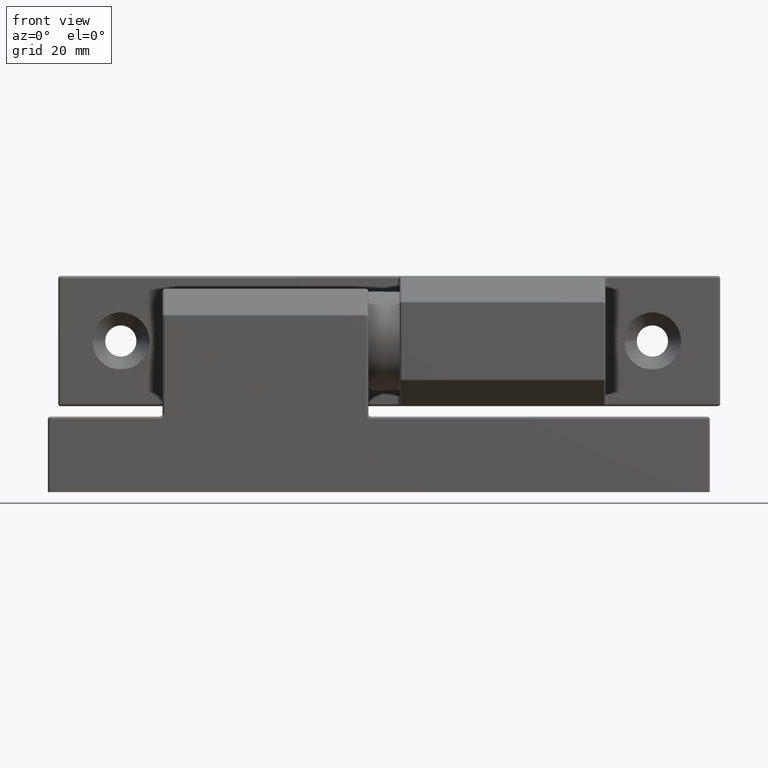
[diagram: clean part render]
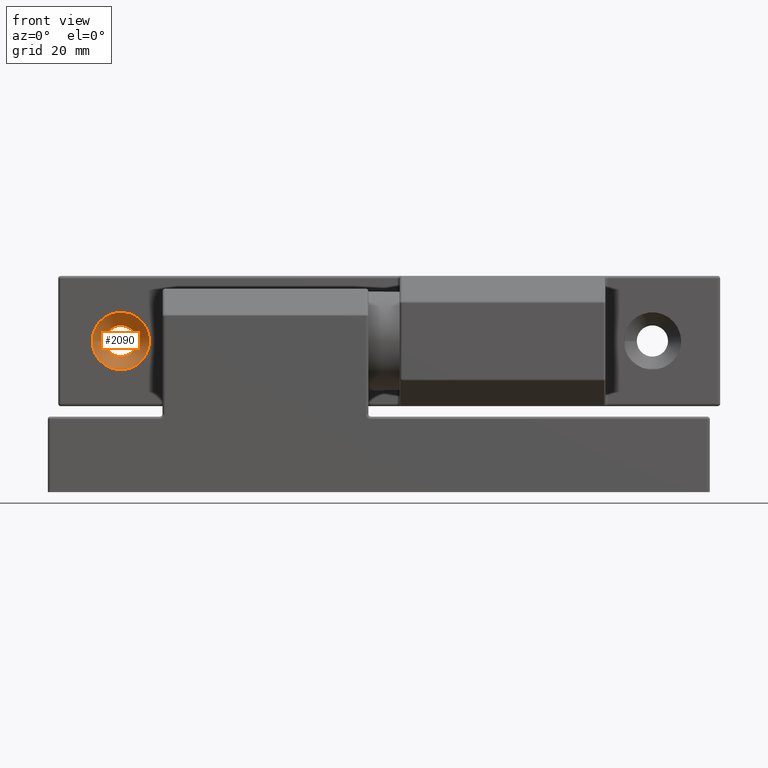
[diagram: same view with one face highlighted and labeled with its STEP entity id]
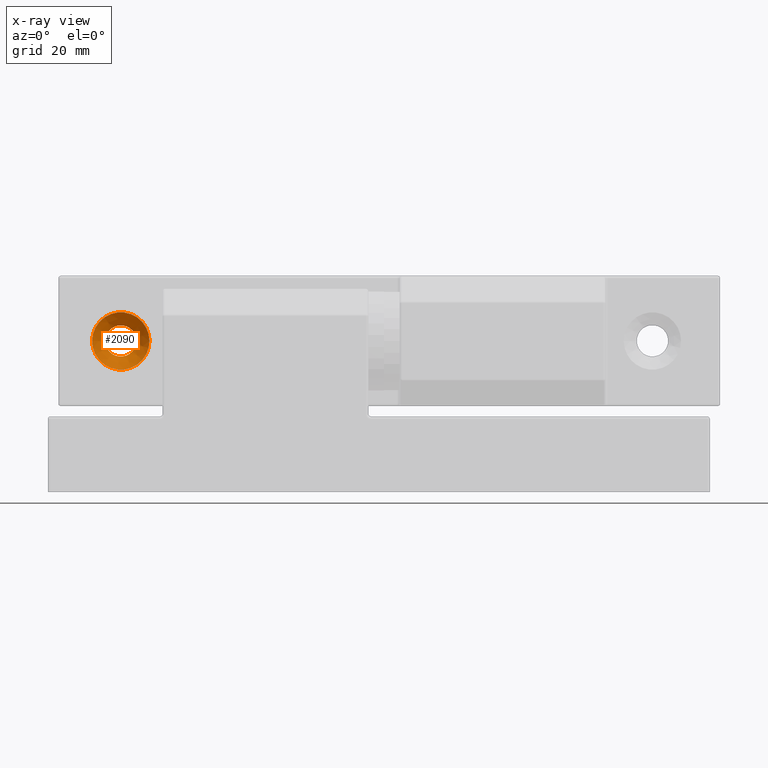
[diagram: x-ray of the same camera — body ghosted, the highlighted face saturated]
A machine part, front view. The second image highlights one B-rep face of the part: STEP entity #2090.
The next image is the same camera in x-ray: the body ghosted, the highlighted face saturated — about 0% of this face is hidden behind the body in this view.
In plain terms, the highlighted conical surface has half-angle 45 deg.
Its self-contained STEP definition (entity closure, byte-faithful):
#43=CONICAL_SURFACE('',#2390,4.25,45.);
#85=FACE_BOUND('',#755,.T.);
#569=FACE_OUTER_BOUND('',#754,.T.);
#754=EDGE_LOOP('',(#1886));
#755=EDGE_LOOP('',(#1887));
#940=CIRCLE('',#2391,5.5);
#941=CIRCLE('',#2392,3.);
#1108=VERTEX_POINT('',#3715);
#1109=VERTEX_POINT('',#3717);
#1380=EDGE_CURVE('',#1108,#1108,#940,.T.);
#1381=EDGE_CURVE('',#1109,#1109,#941,.T.);
#1886=ORIENTED_EDGE('',*,*,#1380,.T.);
#1887=ORIENTED_EDGE('',*,*,#1381,.F.);
#2090=ADVANCED_FACE('',(#569,#85),#43,.F.);
#2390=AXIS2_PLACEMENT_3D('',#3714,#3090,#3091);
#2391=AXIS2_PLACEMENT_3D('',#3716,#3092,#3093);
#2392=AXIS2_PLACEMENT_3D('',#3718,#3094,#3095);
#3090=DIRECTION('center_axis',(0.,0.,1.));
#3091=DIRECTION('ref_axis',(1.,0.,0.));
#3092=DIRECTION('center_axis',(0.,0.,1.));
#3093=DIRECTION('ref_axis',(1.,0.,0.));
#3094=DIRECTION('center_axis',(0.,0.,1.));
#3095=DIRECTION('ref_axis',(1.,0.,0.));
#3714=CARTESIAN_POINT('Origin',(51.5,0.,3.95));
#3715=CARTESIAN_POINT('',(57.,0.,5.2));
#3716=CARTESIAN_POINT('Origin',(51.5,0.,5.2));
#3717=CARTESIAN_POINT('',(54.5,0.,2.7));
#3718=CARTESIAN_POINT('Origin',(51.5,0.,2.7));